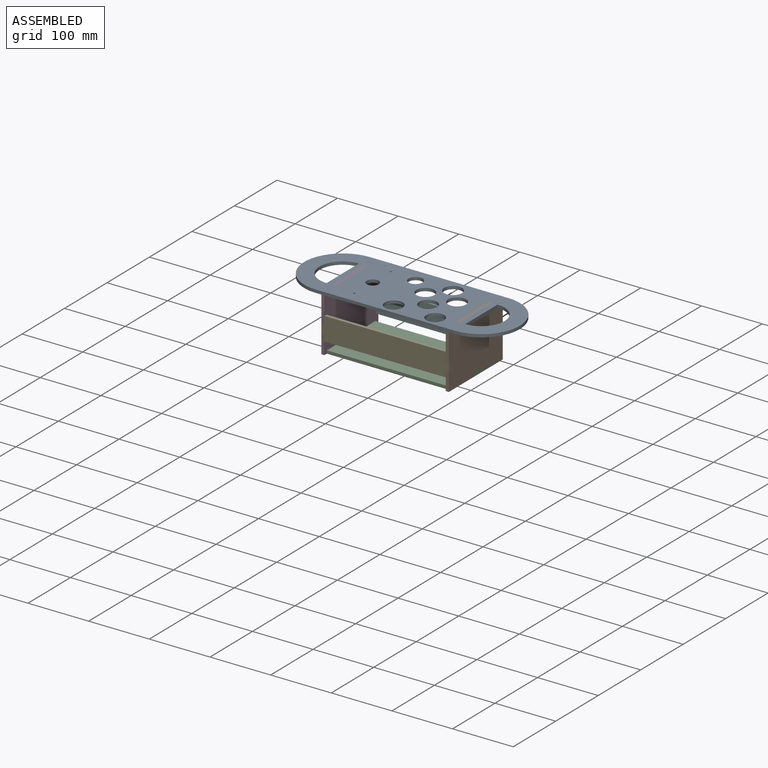
[diagram: assembled view]
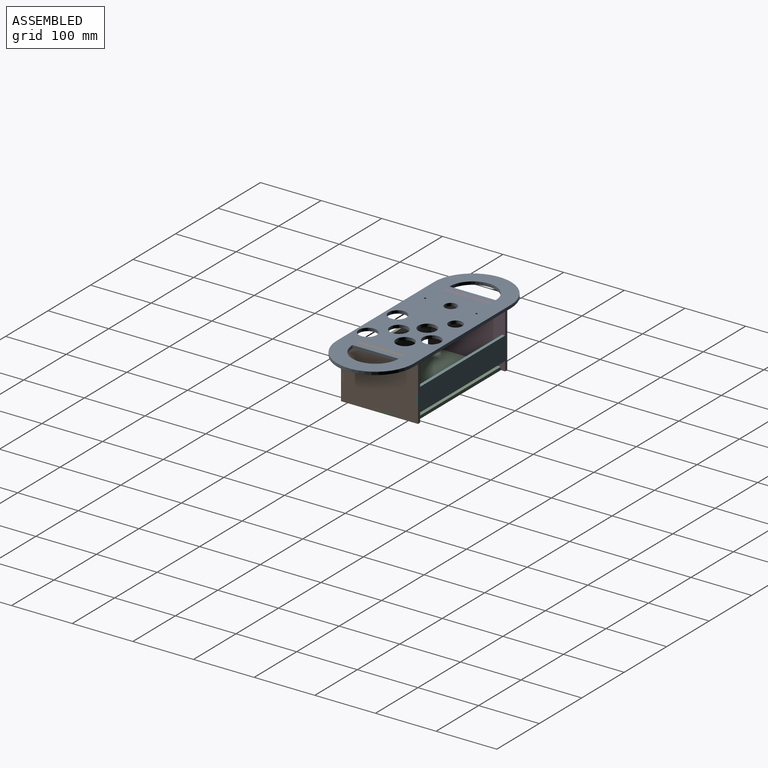
[diagram: assembled view, second angle]
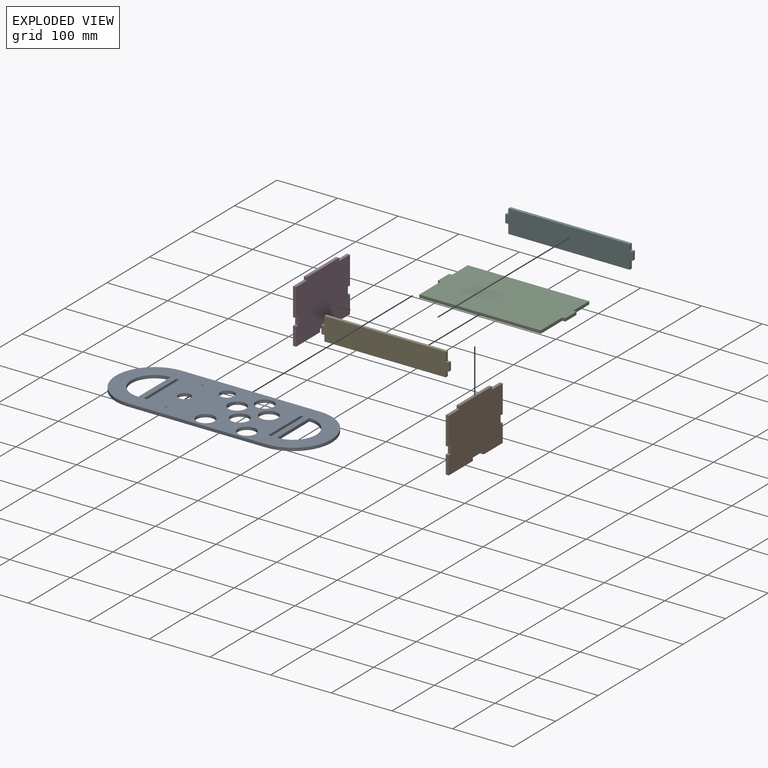
[diagram: exploded view]
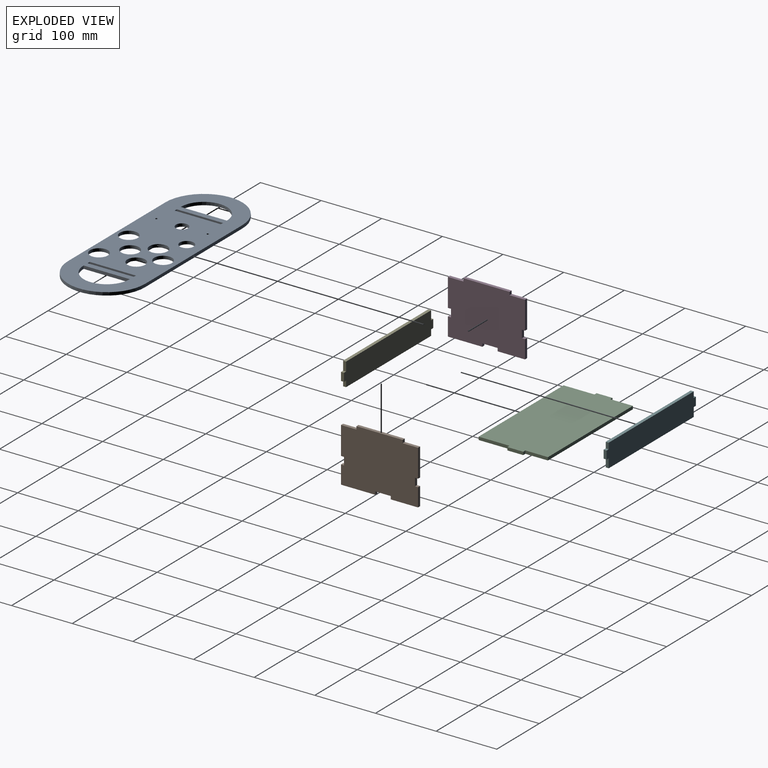
[diagram: exploded view, second angle]
ASSEMBLY  parts=6 mates=5
PART A: 28 faces, bbox 355.6x127x5 mm
  f0: plane 5x5mm, normal (0,-1,0), area 25mm2, adj f1,f25,f26,f27
  f1: plane 76.2x5mm, normal (-1,0,0), area 381mm2, adj f0,f2,f26,f27
  f2: plane 5x5mm, normal (0,1,0), area 25mm2, adj f1,f25,f26,f27
  f3: plane 76.2x5mm, normal (1,0,0), area 381mm2, adj f4,f21,f26,f27
  f4: plane 5x5mm, normal (0,-1,0), area 25mm2, adj f3,f5,f26,f27
  f5: plane 76.2x5mm, normal (-1,0,0), area 381mm2, adj f4,f21,f26,f27
  f6: plane 76.2x5mm, normal (1,0,0), area 381mm2, adj f22,f26,f27
  f7: plane 76.2x5mm, normal (-1,0,0), area 381mm2, adj f23,f26,f27
  f8: cylinder r=63.5mm len=127mm, axis (0,0,-1), area 997.5mm2, adj f9,f24,f26,f27
  f9: plane 228.6x5mm, normal (0,-1,0), area 1143mm2, adj f8,f10,f26,f27
  f10: cylinder r=63.5mm len=127mm, axis (0,0,-1), area 997.5mm2, adj f9,f24,f26,f27
  f11: cylinder r=14.73mm len=29.46mm, axis (0,0,-1), area 462.8mm2, adj f26,f27
  f12: cylinder r=14.73mm len=29.46mm, axis (0,0,-1), area 462.8mm2, adj f26,f27
  f13: cylinder r=14.73mm len=29.46mm, axis (0,0,-1), area 462.8mm2, adj f26,f27
  f14: cylinder r=14.73mm len=29.46mm, axis (0,0,-1), area 462.8mm2, adj f26,f27
  f15: cylinder r=10mm len=20mm, axis (0,0,-1), area 314.2mm2, adj f26,f27
  f16: cylinder r=1.75mm len=5mm, axis (0,0,-1), area 55mm2, adj f26,f27
  f17: cylinder r=11.5mm len=23mm, axis (0,0,-1), area 361.3mm2, adj f26,f27
  f18: cylinder r=14.73mm len=29.46mm, axis (0,0,-1), area 462.8mm2, adj f26,f27
  f19: cylinder r=14.73mm len=29.46mm, axis (0,0,-1), area 462.8mm2, adj f26,f27
  f20: cylinder r=1.75mm len=5mm, axis (0,0,-1), area 55mm2, adj f26,f27
  f21: plane 5x5mm, normal (0,1,0), area 25mm2, adj f3,f5,f26,f27
  f22: cylinder r=38.1mm len=76.2mm, axis (0,0,-1), area 598.5mm2, adj f6,f26,f27
  f23: cylinder r=38.1mm len=76.2mm, axis (0,0,-1), area 598.5mm2, adj f7,f26,f27
  f24: plane 228.6x5mm, normal (0,1,0), area 1143mm2, adj f8,f10,f26,f27
  f25: plane 76.2x5mm, normal (1,0,0), area 381mm2, adj f0,f2,f26,f27
  f26: plane 355.6x127mm, normal (0,0,1), area 31537.7mm2, adj f0,f1,f2,f3,f4,f5,f6,f7
  f27: plane 355.6x127mm, normal (0,0,-1), area 31537.7mm2, adj f0,f1,f2,f3,f4,f5,f6,f7
PART B: 22 faces, bbox 5x127x93.9 mm
  f0: plane 25.4x5mm, normal (0,0,1), area 127mm2, adj f1,f19,f20,f21
  f1: plane 5x5mm, normal (0,1,0), area 25mm2, adj f0,f2,f20,f21
  f2: plane 76.2x5mm, normal (0,0,1), area 381mm2, adj f1,f3,f20,f21
  f3: plane 5x5mm, normal (0,-1,0), area 25mm2, adj f2,f4,f20,f21
  f4: plane 25.4x5mm, normal (0,0,1), area 127mm2, adj f3,f5,f20,f21
  f5: plane 46.12x5mm, normal (0,-1,0), area 230.6mm2, adj f4,f6,f20,f21
  f6: plane 5x5mm, normal (0,0,-1), area 25mm2, adj f5,f7,f20,f21
  f7: plane 12.7x5mm, normal (0,-1,0), area 63.5mm2, adj f6,f8,f20,f21
  f8: plane 5x5mm, normal (0,0,1), area 25mm2, adj f7,f9,f20,f21
  f9: plane 30.08x5mm, normal (0,-1,0), area 150.4mm2, adj f8,f10,f20,f21
  f10: plane 56.61x5mm, normal (0,0,-1), area 283mm2, adj f9,f11,f20,f21
  f11: plane 5x5mm, normal (0,1,0), area 25mm2, adj f10,f12,f20,f21
  f12: plane 25.4x5mm, normal (0,0,-1), area 127mm2, adj f11,f13,f20,f21
  f13: plane 5x5mm, normal (0,-1,0), area 25mm2, adj f12,f14,f20,f21
  f14: plane 44.99x5mm, normal (0,0,-1), area 225mm2, adj f13,f15,f20,f21
  f15: plane 30.08x5mm, normal (0,1,0), area 150.4mm2, adj f14,f16,f20,f21
  f16: plane 5x5mm, normal (0,0,1), area 25mm2, adj f15,f17,f20,f21
  f17: plane 12.7x5mm, normal (0,1,0), area 63.5mm2, adj f16,f18,f20,f21
  f18: plane 5x5mm, normal (0,0,-1), area 25mm2, adj f17,f19,f20,f21
  f19: plane 46.12x5mm, normal (0,1,0), area 230.6mm2, adj f0,f18,f20,f21
  f20: plane 127x93.9mm, normal (1,0,0), area 11417.3mm2, adj f0,f1,f2,f3,f4,f5,f6,f7
  f21: plane 127x93.9mm, normal (-1,0,0), area 11417.3mm2, adj f0,f1,f2,f3,f4,f5,f6,f7
PART C: 14 faces, bbox 114.3x210.2x5 mm
  f0: plane 5x5mm, normal (-1,0,0), area 25mm2, adj f1,f11,f12,f13
  f1: plane 37.21x5mm, normal (0,1,0), area 186.1mm2, adj f0,f2,f12,f13
  f2: plane 200.15x5mm, normal (-1,0,0), area 1000.8mm2, adj f1,f3,f12,f13
  f3: plane 37.21x5mm, normal (0,-1,0), area 186.1mm2, adj f2,f4,f12,f13
  f4: plane 5x5mm, normal (-1,0,0), area 25mm2, adj f3,f5,f12,f13
  f5: plane 26.2x5mm, normal (0,-1,0), area 131mm2, adj f4,f6,f12,f13
  f6: plane 5x5mm, normal (1,0,0), area 25mm2, adj f5,f7,f12,f13
  f7: plane 50.89x5mm, normal (0,-1,0), area 254.4mm2, adj f6,f8,f12,f13
  f8: plane 200.15x5mm, normal (1,0,0), area 1000.8mm2, adj f7,f9,f12,f13
  f9: plane 50.89x5mm, normal (0,1,0), area 254.4mm2, adj f8,f10,f12,f13
  f10: plane 5x5mm, normal (1,0,0), area 25mm2, adj f9,f11,f12,f13
  f11: plane 26.2x5mm, normal (0,1,0), area 131mm2, adj f0,f10,f12,f13
  f12: plane 210.15x114.3mm, normal (0,0,1), area 23139.4mm2, adj f0,f1,f2,f3,f4,f5,f6,f7
  f13: plane 210.15x114.3mm, normal (0,0,-1), area 23139.4mm2, adj f0,f1,f2,f3,f4,f5,f6,f7
PART D: same geometry as B
PART E: 14 faces, bbox 210.2x38.1x5 mm
  f0: plane 5x5mm, normal (0,1,0), area 25mm2, adj f1,f11,f12,f13
  f1: plane 13.5x5mm, normal (-1,0,0), area 67.5mm2, adj f0,f2,f12,f13
  f2: plane 5x5mm, normal (0,-1,0), area 25mm2, adj f1,f3,f12,f13
  f3: plane 9.78x5mm, normal (-1,0,0), area 48.9mm2, adj f2,f4,f12,f13
  f4: plane 200.15x5mm, normal (0,-1,0), area 1000.8mm2, adj f3,f5,f12,f13
  f5: plane 9.78x5mm, normal (1,0,0), area 48.9mm2, adj f4,f6,f12,f13
  f6: plane 5x5mm, normal (0,-1,0), area 25mm2, adj f5,f7,f12,f13
  f7: plane 13.5x5mm, normal (1,0,0), area 67.5mm2, adj f6,f8,f12,f13
  f8: plane 5x5mm, normal (0,1,0), area 25mm2, adj f7,f9,f12,f13
  f9: plane 14.82x5mm, normal (1,0,0), area 74.1mm2, adj f8,f10,f12,f13
  f10: plane 200.15x5mm, normal (0,1,0), area 1000.8mm2, adj f9,f11,f12,f13
  f11: plane 14.82x5mm, normal (-1,0,0), area 74.1mm2, adj f0,f10,f12,f13
  f12: plane 210.15x38.1mm, normal (0,0,1), area 7760.8mm2, adj f0,f1,f2,f3,f4,f5,f6,f7
  f13: plane 210.15x38.1mm, normal (0,0,-1), area 7760.8mm2, adj f0,f1,f2,f3,f4,f5,f6,f7
PART F: same geometry as E
PLACE A t=(-83.54,-72.57,47.66)mm
PLACE B t=(-66.34,-97.22,47.66)mm
PLACE C rot(axis=(0.71,-0.71,0),180deg) t=(-171.49,79.28,-36.24)mm
PLACE D t=(-271.49,-97.22,47.66)mm
PLACE E rot(axis=(1,0,0),90deg) t=(-165.77,-144.93,52.83)mm
PLACE F rot(axis=(-1,0,0),90deg) t=(-165.77,-27.93,-61.64)mm
MATE fastened C.f6 <-> B.f11  axis (0,-1,0) through (-61.34,-93.32,-38.74)mm
MATE fastened D.f21 <-> A.f3  axis (-1,0,0) through (-271.49,-124.53,52.66)mm
MATE fastened E.f2 <-> D.f8  axis (0,0,-1) through (-268.99,-147.43,-11.16)mm
MATE fastened B.f3 <-> A.f2  axis (0,-1,0) through (-61.34,-124.53,50.16)mm
MATE fastened F.f8 <-> B.f16  axis (0,0,-1) through (-63.84,-25.43,-11.16)mm
